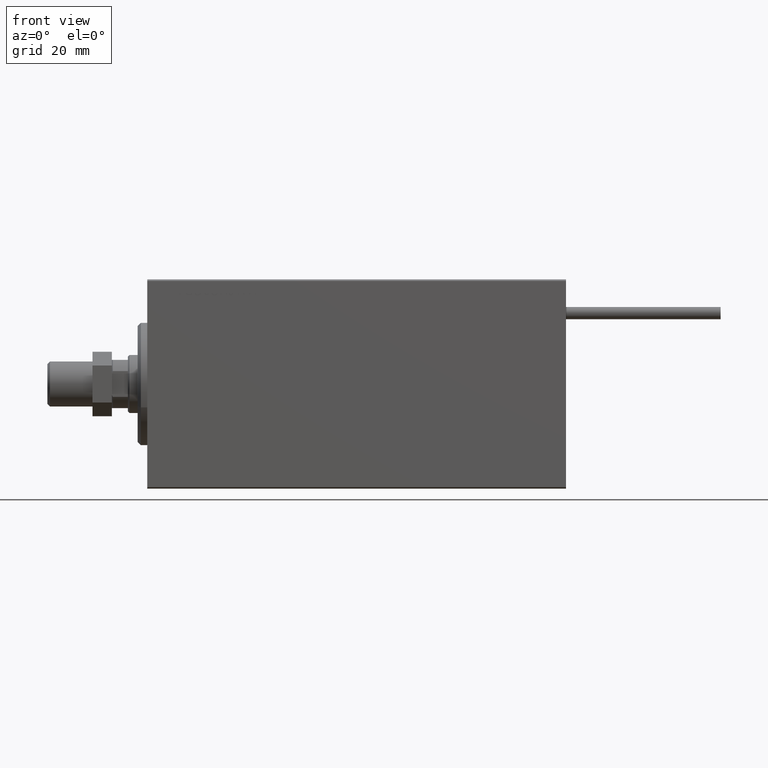
[diagram: clean part render]
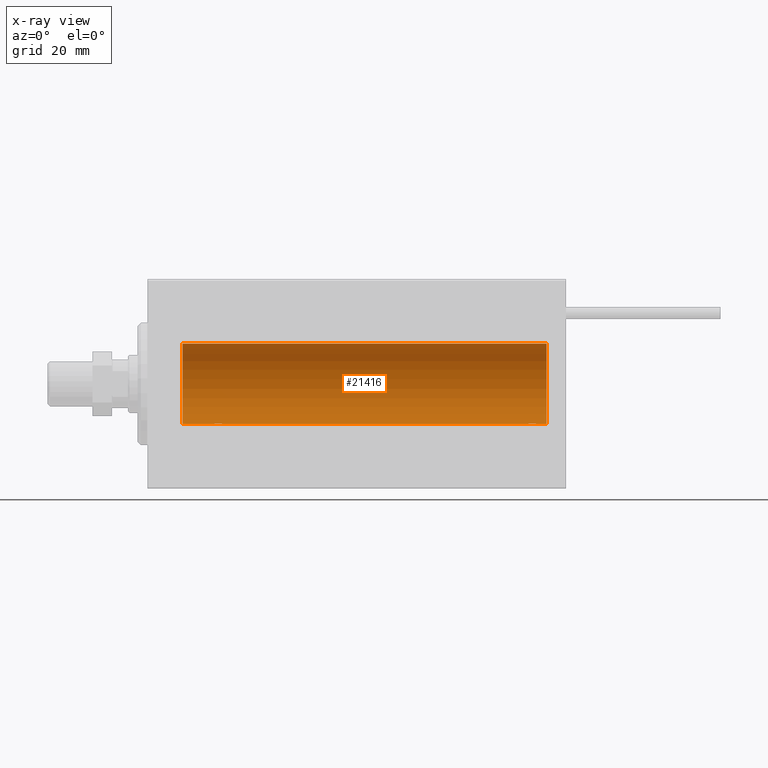
[diagram: x-ray — body ghosted, one internal face saturated and labeled with its STEP entity id]
A machine part, front view, then the same camera in x-ray: the body is ghosted and one INTERNAL B-rep face — a face not visible from any outside direction — is saturated and labeled: STEP entity #21416.
In plain terms, the highlighted cylindrical surface (partial cylindrical patch) has radius 12.5 mm, axis along (-1, -0, -0).
Its self-contained STEP definition (entity closure, byte-faithful):
#73 = CARTESIAN_POINT ( 'NONE',  ( 121.0899140868063313, 1.220297236145710729, -12.44076681548080998 ) ) ;
#277 = CARTESIAN_POINT ( 'NONE',  ( 20.99316879552500481, 1.747608771958139906, -12.37764291807175354 ) ) ;
#335 = CARTESIAN_POINT ( 'NONE',  ( 121.4869038476625889, 0.2633501011236119016, -12.49788564268284041 ) ) ;
#533 = CARTESIAN_POINT ( 'NONE',  ( 20.06395648222636652, 0.5184196815546032733, -12.48990118705761532 ) ) ;
#1043 = CARTESIAN_POINT ( 'NONE',  ( 20.20300788371381273, 0.8876934327478117615, -12.46903010196599304 ) ) ;
#1572 = DIRECTION ( 'NONE',  ( -1.000000000000000000, -0.000000000000000000, -0.000000000000000000 ) ) ;
#2196 = CARTESIAN_POINT ( 'NONE',  ( 120.3865631353301922, 1.797558627508983875, -12.37018026341339194 ) ) ;
#2691 = CARTESIAN_POINT ( 'NONE',  ( 117.5000000000000142, -1.169483437805093529E-14, -12.50000000000000000 ) ) ;
#3187 = CARTESIAN_POINT ( 'NONE',  ( 118.9743641282951074, 1.947190906025027424, -12.34781876294798941 ) ) ;
#3911 = ORIENTED_EDGE ( 'NONE', *, *, #47084, .T. ) ;
#4192 = CARTESIAN_POINT ( 'NONE',  ( 121.5000000000000284, 0.1306394121199379310, -12.50000000000000178 ) ) ;
#4390 = CARTESIAN_POINT ( 'NONE',  ( 22.64415233770293412, 1.897967064543090165, -12.35517291625592051 ) ) ;
#4644 = CARTESIAN_POINT ( 'NONE',  ( 23.98690384766256400, 0.2633501011236120681, -12.49788564268284041 ) ) ;
#4894 = CARTESIAN_POINT ( 'NONE',  ( 23.32102833500698225, 1.507394620545640773, -12.40913174964213184 ) ) ;
#5313 = EDGE_CURVE ( 'NONE', #19352, #28531, #5337, .T. ) ;
#5337 = LINE ( 'NONE', #44613, #15007 ) ;
#5436 = VERTEX_POINT ( 'NONE', #18434 ) ;
#6037 = CARTESIAN_POINT ( 'NONE',  ( 120.0193735085155993, 1.935814255713557142, -12.34922241902463114 ) ) ;
#6546 = CARTESIAN_POINT ( 'NONE',  ( 10.99999999999999645, 0.000000000000000000, 0.000000000000000000 ) ) ;
#7039 = CARTESIAN_POINT ( 'NONE',  ( 117.9939836632721324, 1.322451657002056358, -12.43019346654085311 ) ) ;
#7629 = ORIENTED_EDGE ( 'NONE', *, *, #9036, .T. ) ;
#8236 = CARTESIAN_POINT ( 'NONE',  ( 24.00000000000000000, 1.530808426277417854E-15, -12.50000000000000000 ) ) ;
#8296 = CARTESIAN_POINT ( 'NONE',  ( 120.7198079059458138, 1.590288205413961986, -12.39864157855465265 ) ) ;
#8763 = CARTESIAN_POINT ( 'NONE',  ( 20.10252270298193622, 0.6455696738844897142, -12.48390768591463207 ) ) ;
#9036 = EDGE_CURVE ( 'NONE', #13586, #43864, #41268, .T. ) ;
#9213 = B_SPLINE_CURVE_WITH_KNOTS ( 'NONE', 3,
 ( #2691, #15019, #46312, #41217, #10910, #10423, #18866, #26579, #7039, #22728, #38366, #3187, #49152, #30675, #11167, #6037, #21727, #2196, #14011, #8296, #31680, #19865, #73, #35530, #15519, #46559, #11662, #335, #4192, #27335 ),
 .UNSPECIFIED., .F., .F.,
 ( 4, 2, 2, 2, 2, 2, 2, 2, 2, 2, 2, 2, 2, 2, 4 ),
 ( 1.846017744464648771E-18, 0.0003914362731607729158, 0.0007828725463215439884, 0.001174308819482315115, 0.001565745092643086242, 0.002348617638964598138, 0.003131490185286110901, 0.003522926458446867717, 0.003914362731607624532, 0.004305799004768380914, 0.004697235277929136428, 0.005088671551089892810, 0.005480107824250649191, 0.005871544097411406440, 0.006262980370572161955 ),
 .UNSPECIFIED. ) ;
#9446 = DIRECTION ( 'NONE',  ( -1.000000000000000000, -0.000000000000000000, -0.000000000000000000 ) ) ;
#9852 = CARTESIAN_POINT ( 'NONE',  ( 117.5000000000000142, -1.169483437805093529E-14, -12.50000000000000000 ) ) ;
#10170 = DIRECTION ( 'NONE',  ( -1.000000000000000000, 0.000000000000000000, 0.000000000000000000 ) ) ;
#10423 = CARTESIAN_POINT ( 'NONE',  ( 117.7030078837138518, 0.8876934327478018805, -12.46903010196599659 ) ) ;
#10473 = CARTESIAN_POINT ( 'NONE',  ( 124.0000000000000000, 0.000000000000000000, 12.50000000000000000 ) ) ;
#10910 = CARTESIAN_POINT ( 'NONE',  ( 117.6025227029819717, 0.6455696738844808324, -12.48390768591463384 ) ) ;
#10931 = AXIS2_PLACEMENT_3D ( 'NONE', #6546, #10170, #14776 ) ;
#11165 = EDGE_CURVE ( 'NONE', #18920, #43864, #13405, .T. ) ;
#11167 = CARTESIAN_POINT ( 'NONE',  ( 119.7626946245460147, 1.986986967296522799, -12.34109209020653175 ) ) ;
#11662 = CARTESIAN_POINT ( 'NONE',  ( 121.4356177452185506, 0.5201193324741325563, -12.48983485452575337 ) ) ;
#12108 = CARTESIAN_POINT ( 'NONE',  ( 23.21980790594580313, 1.590288205413975309, -12.39864157855465088 ) ) ;
#12357 = CARTESIAN_POINT ( 'NONE',  ( 23.50733550364322255, 1.321095788880538136, -12.43034574091277911 ) ) ;
#12610 = DIRECTION ( 'NONE',  ( -1.000000000000000000, -0.000000000000000000, -0.000000000000000000 ) ) ;
#12733 = CARTESIAN_POINT ( 'NONE',  ( 124.0000000000000000, 0.000000000000000000, 12.50000000000000000 ) ) ;
#13111 = CARTESIAN_POINT ( 'NONE',  ( 10.99999999999999645, 1.530808498934191521E-15, -12.50000000000000000 ) ) ;
#13122 = CARTESIAN_POINT ( 'NONE',  ( 21.47436412829510033, 1.947190906025044077, -12.34781876294798053 ) ) ;
#13143 = CARTESIAN_POINT ( 'NONE',  ( 124.0000000000000000, 1.530808498934191521E-15, -12.50000000000000000 ) ) ;
#13405 = LINE ( 'NONE', #13143, #31478 ) ;
#13586 = VERTEX_POINT ( 'NONE', #27547 ) ;
#14011 = CARTESIAN_POINT ( 'NONE',  ( 120.5033581429918570, 1.734998657226752616, -12.37922086519036036 ) ) ;
#14247 = CARTESIAN_POINT ( 'NONE',  ( 121.5000000000000284, 1.530808426268740384E-15, -12.50000000000000000 ) ) ;
#14709 = EDGE_CURVE ( 'NONE', #43027, #19352, #47986, .T. ) ;
#14776 = DIRECTION ( 'NONE',  ( 0.000000000000000000, 0.000000000000000000, 1.000000000000000000 ) ) ;
#15007 = VECTOR ( 'NONE', #9446, 1000.000000000000000 ) ;
#15019 = CARTESIAN_POINT ( 'NONE',  ( 117.5000000000000142, 0.1323736289504215957, -12.50000000000000178 ) ) ;
#15519 = CARTESIAN_POINT ( 'NONE',  ( 121.2974249191616138, 0.8868029758979325550, -12.46909283808506430 ) ) ;
#15964 = CARTESIAN_POINT ( 'NONE',  ( 20.01301208516349206, 0.2624928479599882847, -12.49789934882883458 ) ) ;
#16255 = CARTESIAN_POINT ( 'NONE',  ( 19.99999999999999645, -3.966047509268588167E-15, -12.50000000000000000 ) ) ;
#16730 = CARTESIAN_POINT ( 'NONE',  ( 24.00000000000000711, 0.1306394121199392910, -12.50000000000000533 ) ) ;
#16995 = EDGE_LOOP ( 'NONE', ( #44007, #35274, #24979, #7629, #46276, #3911, #42631, #38099 ) ) ;
#17717 = CARTESIAN_POINT ( 'NONE',  ( 124.0000000000000000, 0.000000000000000000, 0.000000000000000000 ) ) ;
#18434 = CARTESIAN_POINT ( 'NONE',  ( 24.00000000000000000, 1.530808426277417854E-15, -12.50000000000000000 ) ) ;
#18866 = CARTESIAN_POINT ( 'NONE',  ( 117.7644674456187062, 1.002494658017142104, -12.46021263690097669 ) ) ;
#18920 = VERTEX_POINT ( 'NONE', #16255 ) ;
#19352 = VERTEX_POINT ( 'NONE', #20800 ) ;
#19865 = CARTESIAN_POINT ( 'NONE',  ( 121.0073355036432474, 1.321095788880528366, -12.43034574091278266 ) ) ;
#20322 = CARTESIAN_POINT ( 'NONE',  ( 23.73470742397611843, 1.003863686549172352, -12.46009879577771606 ) ) ;
#20564 = CARTESIAN_POINT ( 'NONE',  ( 23.79742491916155700, 0.8868029758979399935, -12.46909283808506430 ) ) ;
#20800 = CARTESIAN_POINT ( 'NONE',  ( 124.0000000000000000, 1.530808498934191521E-15, -12.50000000000000000 ) ) ;
#20828 = CARTESIAN_POINT ( 'NONE',  ( 19.99999999999999645, 0.1323736289504319763, -12.50000000000000000 ) ) ;
#21159 = EDGE_CURVE ( 'NONE', #43027, #13586, #47879, .T. ) ;
#21416 = ADVANCED_FACE ( 'NONE', ( #47754 ), #31864, .F. ) ;
#21727 = CARTESIAN_POINT ( 'NONE',  ( 120.1441523377029768, 1.897967064543075066, -12.35517291625592406 ) ) ;
#22728 = CARTESIAN_POINT ( 'NONE',  ( 118.2703350612685398, 1.598680238462349301, -12.39873273758732353 ) ) ;
#23595 = EDGE_CURVE ( 'NONE', #48189, #28531, #9213, .T. ) ;
#24438 = CARTESIAN_POINT ( 'NONE',  ( 22.12992629360264729, 2.000049200055402210, -12.33895470450623044 ) ) ;
#24691 = CARTESIAN_POINT ( 'NONE',  ( 20.77033506126850426, 1.598680238462369951, -12.39873273758732175 ) ) ;
#24979 = ORIENTED_EDGE ( 'NONE', *, *, #21159, .T. ) ;
#25481 = LINE ( 'NONE', #37024, #38566 ) ;
#26579 = CARTESIAN_POINT ( 'NONE',  ( 117.9096331999059828, 1.219754986802265462, -12.44082361696003680 ) ) ;
#26726 = VECTOR ( 'NONE', #28401, 1000.000000000000000 ) ;
#27335 = CARTESIAN_POINT ( 'NONE',  ( 121.5000000000000284, 1.530808426268740384E-15, -12.50000000000000000 ) ) ;
#27547 = CARTESIAN_POINT ( 'NONE',  ( 10.99999999999999645, 0.000000000000000000, 12.50000000000000000 ) ) ;
#27780 = CARTESIAN_POINT ( 'NONE',  ( 23.89773031393658087, 0.6448065707253023415, -12.48394649977302073 ) ) ;
#28035 = CARTESIAN_POINT ( 'NONE',  ( 19.99999999999999645, -3.966047509268588167E-15, -12.50000000000000000 ) ) ;
#28292 = CARTESIAN_POINT ( 'NONE',  ( 22.26269462454597914, 1.986986967296540119, -12.34109209020652465 ) ) ;
#28401 = DIRECTION ( 'NONE',  ( -1.000000000000000000, -0.000000000000000000, -0.000000000000000000 ) ) ;
#28531 = VERTEX_POINT ( 'NONE', #14247 ) ;
#28788 = CARTESIAN_POINT ( 'NONE',  ( 23.58991408680628155, 1.220297236145721609, -12.44076681548080288 ) ) ;
#29332 = DIRECTION ( 'NONE',  ( -1.000000000000000000, -0.000000000000000000, -0.000000000000000000 ) ) ;
#29563 = B_SPLINE_CURVE_WITH_KNOTS ( 'NONE', 3,
 ( #28035, #20828, #15964, #533, #8763, #1043, #47261, #35467, #39832, #24691, #277, #13122, #32129, #24438, #28292, #39569, #4390, #47763, #40332, #12108, #4894, #12357, #28788, #20322, #20564, #27780, #43408, #4644, #16730, #8236 ),
 .UNSPECIFIED., .F., .F.,
 ( 4, 2, 2, 2, 2, 2, 2, 2, 2, 2, 2, 2, 2, 2, 4 ),
 ( 3.611342868676865251E-19, 0.0003914362731607586585, 0.0007828725463215168833, 0.001174308819482275217, 0.001565745092643033550, 0.002348617638964549999, 0.003131490185286066666, 0.003522926458446830420, 0.003914362731607594174, 0.004305799004768357495, 0.004697235277929121683, 0.005088671551089885003, 0.005480107824250649191, 0.005871544097411412512, 0.006262980370572176700 ),
 .UNSPECIFIED. ) ;
#30675 = CARTESIAN_POINT ( 'NONE',  ( 119.6299262936026793, 2.000049200055385334, -12.33895470450623399 ) ) ;
#31478 = VECTOR ( 'NONE', #1572, 1000.000000000000000 ) ;
#31680 = CARTESIAN_POINT ( 'NONE',  ( 120.8210283350070142, 1.507394620545629671, -12.40913174964213361 ) ) ;
#31864 = CYLINDRICAL_SURFACE ( 'NONE', #33289, 12.50000000000000000 ) ;
#32129 = CARTESIAN_POINT ( 'NONE',  ( 21.73788193668374902, 1.999901172190678533, -12.33897869807161385 ) ) ;
#32444 = AXIS2_PLACEMENT_3D ( 'NONE', #17717, #34317, #38649 ) ;
#33289 = AXIS2_PLACEMENT_3D ( 'NONE', #40069, #12610, #44420 ) ;
#34317 = DIRECTION ( 'NONE',  ( -1.000000000000000000, 0.000000000000000000, 0.000000000000000000 ) ) ;
#35274 = ORIENTED_EDGE ( 'NONE', *, *, #14709, .F. ) ;
#35467 = CARTESIAN_POINT ( 'NONE',  ( 20.40963319990594016, 1.219754986802279451, -12.44082361696003503 ) ) ;
#35530 = CARTESIAN_POINT ( 'NONE',  ( 121.2347074239761611, 1.003863686549161915, -12.46009879577771606 ) ) ;
#36160 = EDGE_CURVE ( 'NONE', #48189, #5436, #25481, .T. ) ;
#37024 = CARTESIAN_POINT ( 'NONE',  ( 124.0000000000000000, 1.530808498934191521E-15, -12.50000000000000000 ) ) ;
#38099 = ORIENTED_EDGE ( 'NONE', *, *, #23595, .T. ) ;
#38366 = CARTESIAN_POINT ( 'NONE',  ( 118.4931687955250226, 1.747608771958121920, -12.37764291807175709 ) ) ;
#38566 = VECTOR ( 'NONE', #29332, 1000.000000000000000 ) ;
#38649 = DIRECTION ( 'NONE',  ( 0.000000000000000000, 0.000000000000000000, 1.000000000000000000 ) ) ;
#39569 = CARTESIAN_POINT ( 'NONE',  ( 22.51937350851555308, 1.935814255713574905, -12.34922241902463114 ) ) ;
#39832 = CARTESIAN_POINT ( 'NONE',  ( 20.49398366327207910, 1.322451657002076120, -12.43019346654084956 ) ) ;
#40069 = CARTESIAN_POINT ( 'NONE',  ( 124.0000000000000000, 0.000000000000000000, 0.000000000000000000 ) ) ;
#40332 = CARTESIAN_POINT ( 'NONE',  ( 23.00335814299181436, 1.734998657226765939, -12.37922086519035325 ) ) ;
#41217 = CARTESIAN_POINT ( 'NONE',  ( 117.5639564822263878, 0.5184196815545927262, -12.48990118705761887 ) ) ;
#41268 = CIRCLE ( 'NONE', #10931, 12.50000000000000000 ) ;
#42631 = ORIENTED_EDGE ( 'NONE', *, *, #36160, .F. ) ;
#43027 = VERTEX_POINT ( 'NONE', #10473 ) ;
#43408 = CARTESIAN_POINT ( 'NONE',  ( 23.93561774521849728, 0.5201193324741352209, -12.48983485452574982 ) ) ;
#43864 = VERTEX_POINT ( 'NONE', #13111 ) ;
#44007 = ORIENTED_EDGE ( 'NONE', *, *, #5313, .F. ) ;
#44420 = DIRECTION ( 'NONE',  ( 0.000000000000000000, 0.000000000000000000, 1.000000000000000000 ) ) ;
#44613 = CARTESIAN_POINT ( 'NONE',  ( 124.0000000000000000, 1.530808498934191521E-15, -12.50000000000000000 ) ) ;
#46276 = ORIENTED_EDGE ( 'NONE', *, *, #11165, .F. ) ;
#46312 = CARTESIAN_POINT ( 'NONE',  ( 117.5130120851634956, 0.2624928479599785702, -12.49789934882883458 ) ) ;
#46559 = CARTESIAN_POINT ( 'NONE',  ( 121.3977303139366200, 0.6448065707252962353, -12.48394649977302606 ) ) ;
#47084 = EDGE_CURVE ( 'NONE', #18920, #5436, #29563, .T. ) ;
#47261 = CARTESIAN_POINT ( 'NONE',  ( 20.26446744561862801, 1.002494658017155871, -12.46021263690096958 ) ) ;
#47754 = FACE_OUTER_BOUND ( 'NONE', #16995, .T. ) ;
#47763 = CARTESIAN_POINT ( 'NONE',  ( 22.88656313533016373, 1.797558627508998086, -12.37018026341338839 ) ) ;
#47879 = LINE ( 'NONE', #12733, #26726 ) ;
#47986 = CIRCLE ( 'NONE', #32444, 12.50000000000000000 ) ;
#48189 = VERTEX_POINT ( 'NONE', #9852 ) ;
#49152 = CARTESIAN_POINT ( 'NONE',  ( 119.2378819366838059, 1.999901172190663212, -12.33897869807161563 ) ) ;